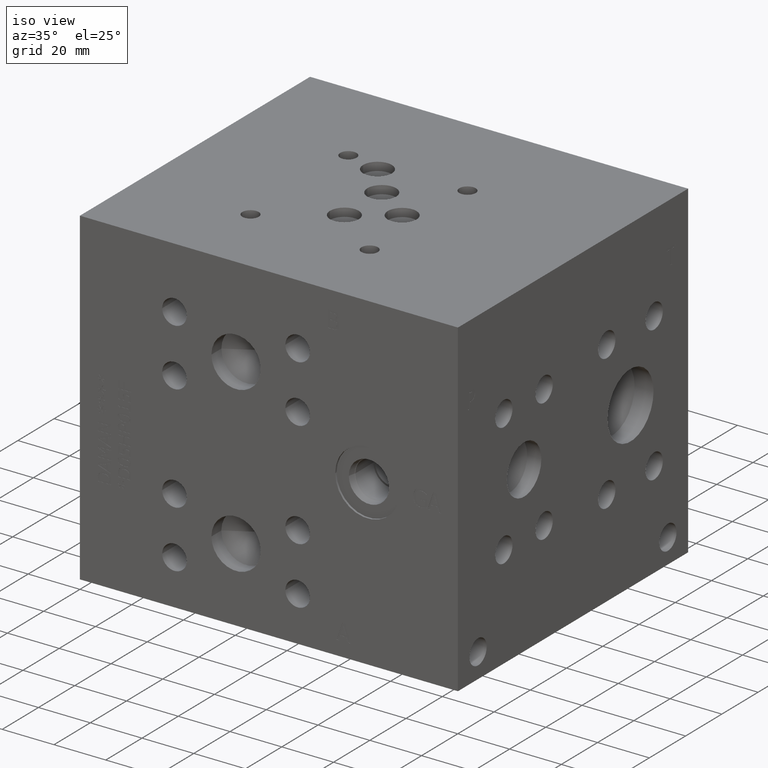
[diagram: clean part render]
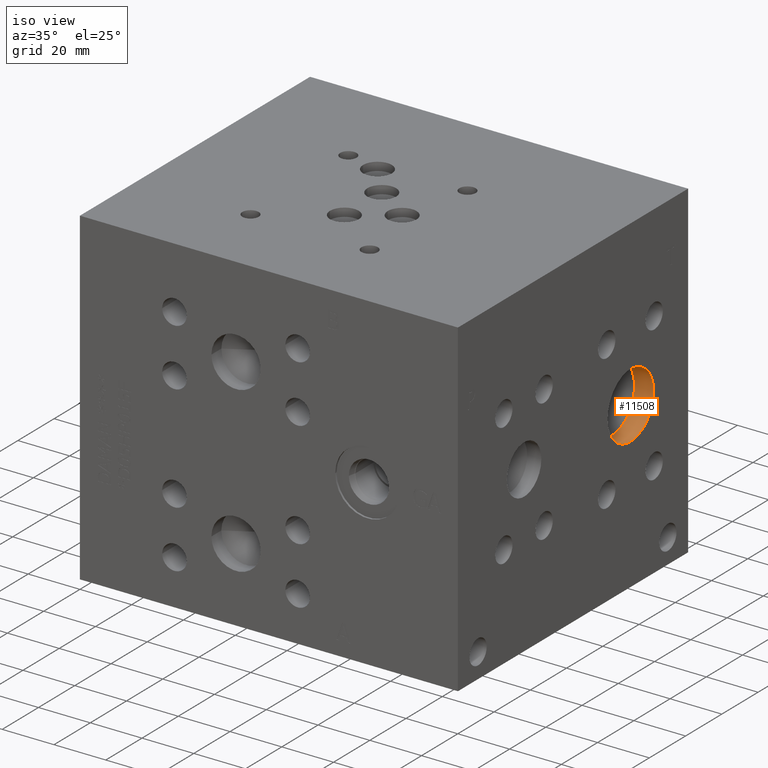
[diagram: same view with one face highlighted and labeled with its STEP entity id]
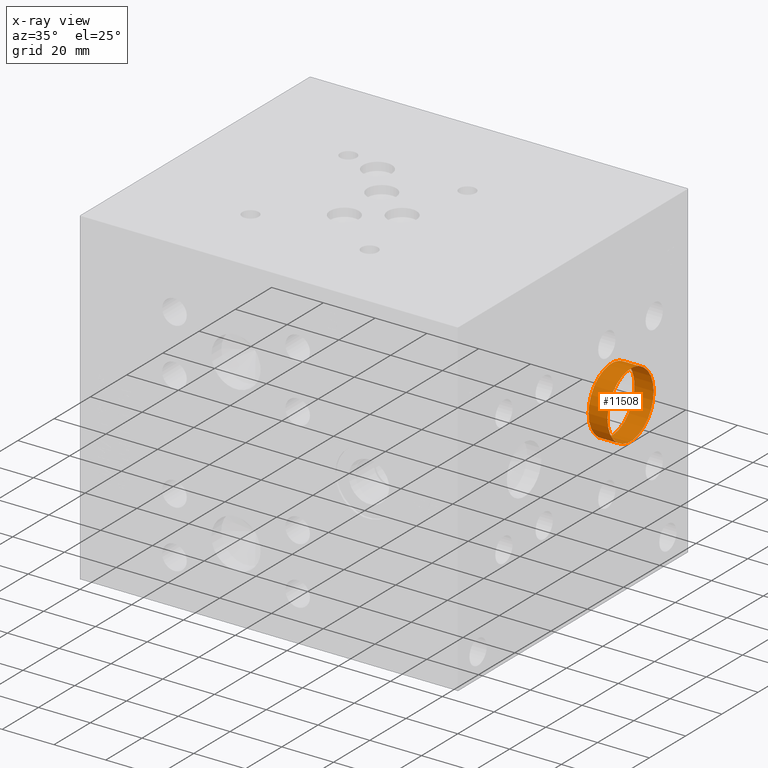
[diagram: x-ray of the same camera — body ghosted, the highlighted face saturated]
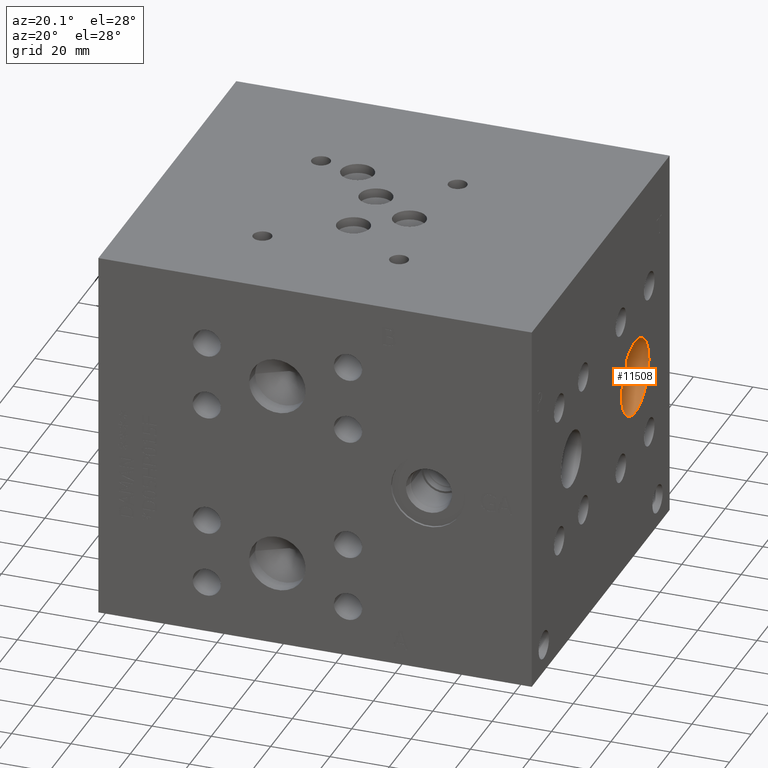
[diagram: same view with one face highlighted and labeled with its STEP entity id]
A machine part, iso view. The second image highlights one B-rep face of the part: STEP entity #11508.
The next image is the same camera in x-ray: the body ghosted, the highlighted face saturated — about 0% of this face is hidden behind the body in this view.
A second angle (auxiliary view) of the same face is appended — the face is thin or edge-on in the first view.
In plain terms, the highlighted cylindrical surface (bore or boss wall) has radius 12.7 mm, axis along (1, 0, 0).
Its self-contained STEP definition (entity closure, byte-faithful):
#44=CYLINDRICAL_SURFACE('',#12150,12.7);
#161=CIRCLE('',#11905,12.7);
#162=CIRCLE('',#11906,12.7);
#288=CIRCLE('',#12148,12.7);
#289=CIRCLE('',#12149,12.7);
#1384=FACE_OUTER_BOUND('',#2069,.T.);
#2069=EDGE_LOOP('',(#9982,#9983,#9984,#9985,#9986,#9987));
#3193=LINE('',#19359,#4265);
#4265=VECTOR('',#14432,12.7);
#5276=VERTEX_POINT('',#18327);
#5277=VERTEX_POINT('',#18328);
#5535=VERTEX_POINT('',#19352);
#5536=VERTEX_POINT('',#19353);
#6717=EDGE_CURVE('',#5276,#5277,#161,.T.);
#6718=EDGE_CURVE('',#5277,#5276,#162,.T.);
#7077=EDGE_CURVE('',#5535,#5536,#288,.T.);
#7079=EDGE_CURVE('',#5536,#5535,#289,.T.);
#7080=EDGE_CURVE('',#5277,#5536,#3193,.T.);
#9982=ORIENTED_EDGE('',*,*,#6717,.F.);
#9983=ORIENTED_EDGE('',*,*,#6718,.F.);
#9984=ORIENTED_EDGE('',*,*,#7080,.T.);
#9985=ORIENTED_EDGE('',*,*,#7077,.F.);
#9986=ORIENTED_EDGE('',*,*,#7079,.F.);
#9987=ORIENTED_EDGE('',*,*,#7080,.F.);
#11508=ADVANCED_FACE('',(#1384),#44,.F.);
#11905=AXIS2_PLACEMENT_3D('',#18329,#13744,#13745);
#11906=AXIS2_PLACEMENT_3D('',#18330,#13746,#13747);
#12148=AXIS2_PLACEMENT_3D('',#19354,#14425,#14426);
#12149=AXIS2_PLACEMENT_3D('',#19357,#14428,#14429);
#12150=AXIS2_PLACEMENT_3D('',#19358,#14430,#14431);
#13744=DIRECTION('center_axis',(-1.,0.,0.));
#13745=DIRECTION('ref_axis',(0.,1.,0.));
#13746=DIRECTION('center_axis',(-1.,0.,0.));
#13747=DIRECTION('ref_axis',(0.,1.,0.));
#14425=DIRECTION('center_axis',(1.,0.,0.));
#14426=DIRECTION('ref_axis',(0.,1.,0.));
#14428=DIRECTION('center_axis',(1.,0.,0.));
#14429=DIRECTION('ref_axis',(0.,1.,0.));
#14430=DIRECTION('center_axis',(1.,0.,0.));
#14431=DIRECTION('ref_axis',(0.,1.,0.));
#14432=DIRECTION('',(-1.,0.,0.));
#18327=CARTESIAN_POINT('',(146.05,107.95,63.5));
#18328=CARTESIAN_POINT('',(146.05,82.55,63.5));
#18329=CARTESIAN_POINT('Origin',(146.05,95.25,63.5));
#18330=CARTESIAN_POINT('Origin',(146.05,95.25,63.5));
#19352=CARTESIAN_POINT('',(138.71765,107.95,63.5));
#19353=CARTESIAN_POINT('',(138.71765,82.55,63.5));
#19354=CARTESIAN_POINT('Origin',(138.71765,95.25,63.5));
#19357=CARTESIAN_POINT('Origin',(138.71765,95.25,63.5));
#19358=CARTESIAN_POINT('Origin',(142.383825,95.25,63.5));
#19359=CARTESIAN_POINT('',(142.383825,82.55,63.5));